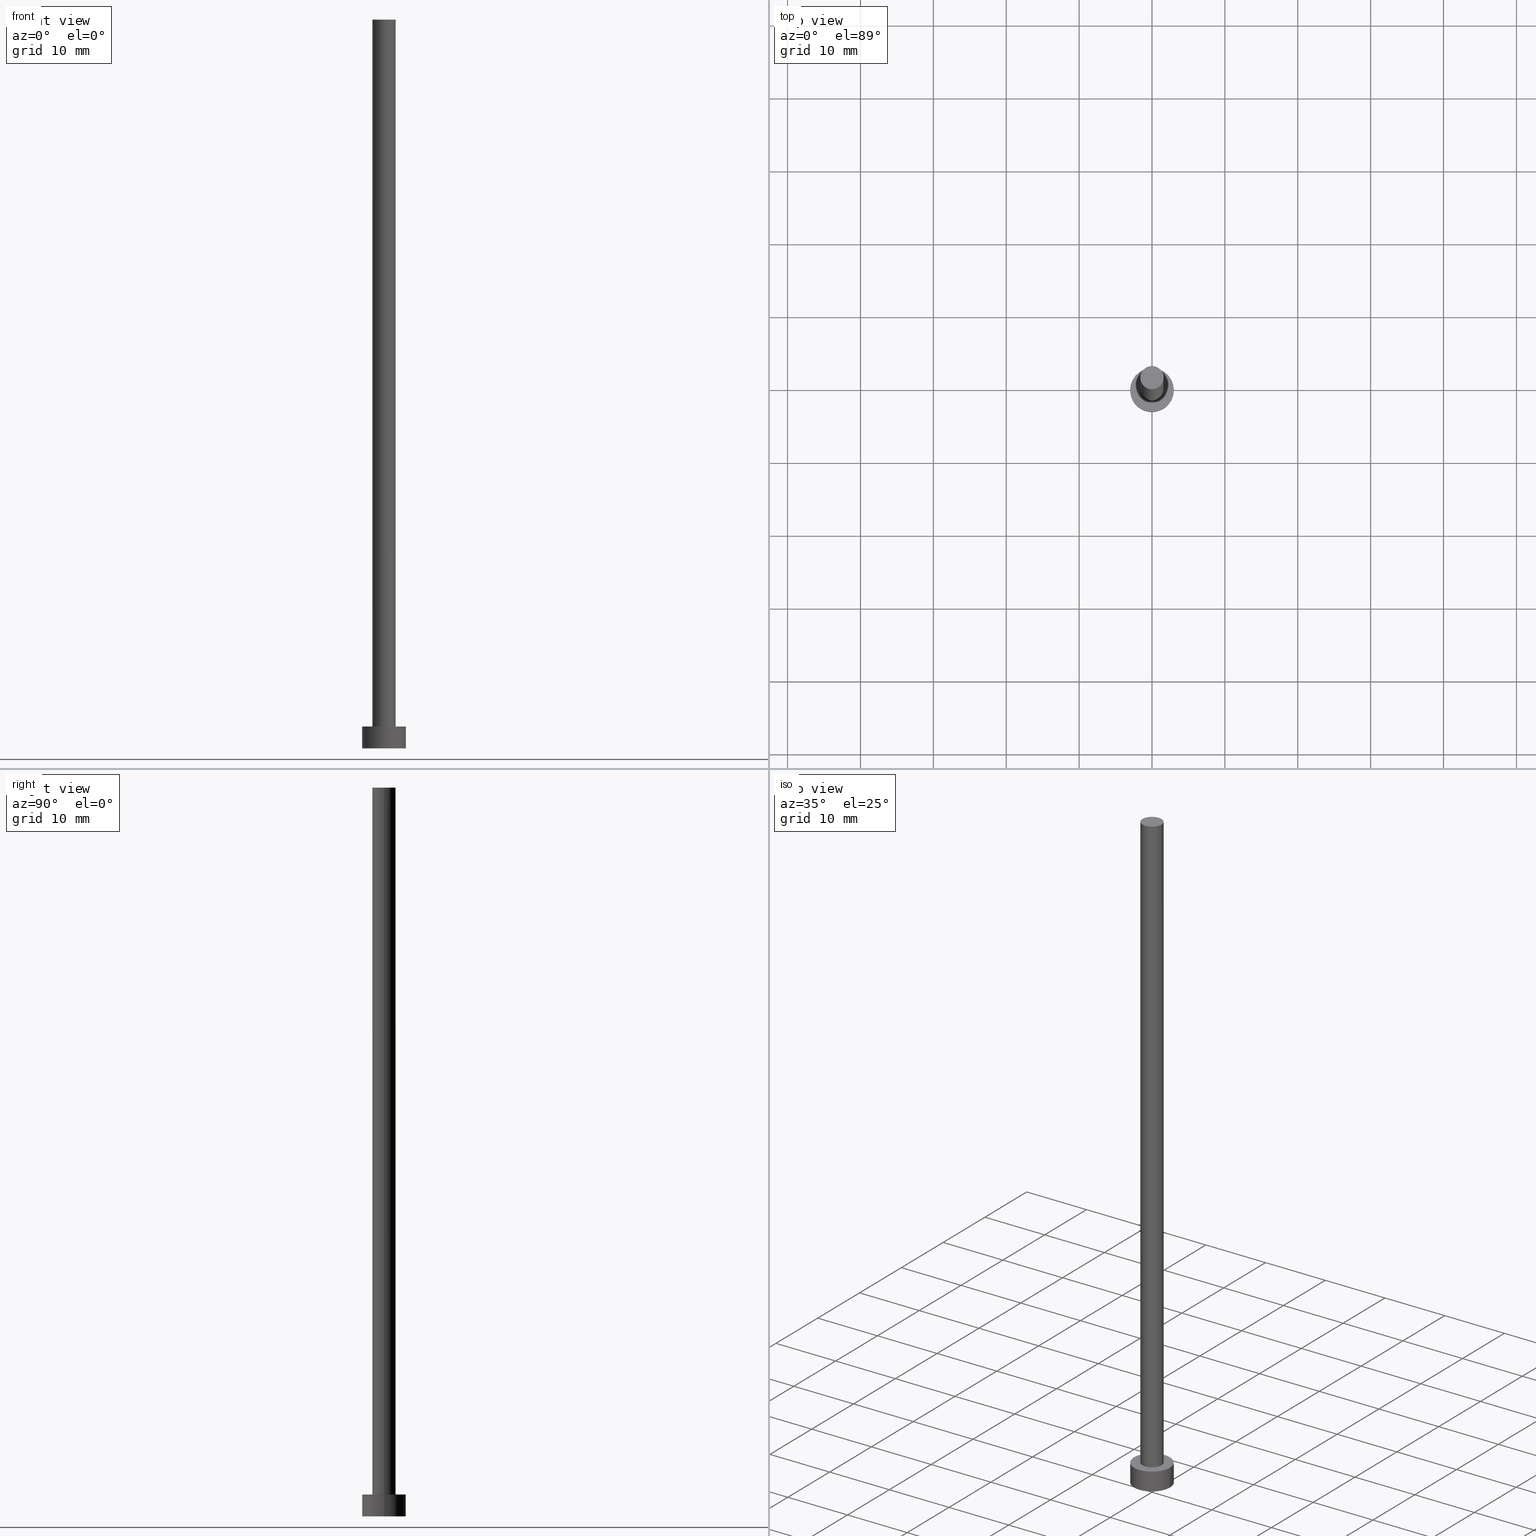
[diagram: canonical four-view strip — front | top / right | iso, engineering-drawing reading convention]
A machine part, canonical four-view strip (front | top / right | iso — engineering-drawing reading convention). The complete STEP part file that produces these views, byte-faithful:
ISO-10303-21;
HEADER;
FILE_DESCRIPTION (( 'STEP AP203' ),
    '1' );
FILE_NAME ('49ca.STEP',
    '2023-02-13T14:26:01',
    ( '' ),
    ( '' ),
    'SwSTEP 2.0',
    'SolidWorks 2019',
    '' );
FILE_SCHEMA (( 'CONFIG_CONTROL_DESIGN' ));
ENDSEC;

DATA;
#1 = CARTESIAN_POINT ( 'NONE',  ( 0.000000000000000000, 0.000000000000000000, 3.000000000000000000 ) ) ;
#2 = DATE_AND_TIME ( #176, #4 ) ;
#3 = PERSON_AND_ORGANIZATION ( #208, #141 ) ;
#4 = LOCAL_TIME ( 15, 26, 1.000000000000000000, #120 ) ;
#5 = LINE ( 'NONE', #207, #225 ) ;
#6 = CIRCLE ( 'NONE', #136, 3.000000000000000444 ) ;
#7 = VERTEX_POINT ( 'NONE', #42 ) ;
#8 = DIRECTION ( 'NONE',  ( 0.000000000000000000, 0.000000000000000000, 1.000000000000000000 ) ) ;
#9 = DIRECTION ( 'NONE',  ( -0.000000000000000000, -0.000000000000000000, -1.000000000000000000 ) ) ;
#10 = DIRECTION ( 'NONE',  ( 1.000000000000000000, 0.000000000000000000, 0.000000000000000000 ) ) ;
#11 = ADVANCED_FACE ( 'NONE', ( #180, #122 ), #248, .T. ) ;
#12 = ADVANCED_FACE ( 'NONE', ( #60 ), #204, .T. ) ;
#13 = CARTESIAN_POINT ( 'NONE',  ( 3.000000000000000444, 3.673940397442060361E-16, 3.000000000000000000 ) ) ;
#14 = CIRCLE ( 'NONE', #232, 3.000000000000000444 ) ;
#15 = CYLINDRICAL_SURFACE ( 'NONE', #111, 3.000000000000000444 ) ;
#16 = DIRECTION ( 'NONE',  ( 0.000000000000000000, 0.000000000000000000, 1.000000000000000000 ) ) ;
#17 = CC_DESIGN_DATE_AND_TIME_ASSIGNMENT ( #76, #133, ( #147 ) ) ;
#18 = DIRECTION ( 'NONE',  ( 1.000000000000000000, 0.000000000000000000, 0.000000000000000000 ) ) ;
#19 = CIRCLE ( 'NONE', #190, 3.000000000000000444 ) ;
#20 = PERSON_AND_ORGANIZATION ( #208, #141 ) ;
#21 = EDGE_CURVE ( 'NONE', #26, #212, #6, .T. ) ;
#22 = APPROVAL_STATUS ( 'not_yet_approved' ) ;
#23 = DATE_AND_TIME ( #38, #200 ) ;
#24 = VERTEX_POINT ( 'NONE', #160 ) ;
#25 = CC_DESIGN_SECURITY_CLASSIFICATION ( #115, ( #171 ) ) ;
#26 = VERTEX_POINT ( 'NONE', #32 ) ;
#27 = ORIENTED_EDGE ( 'NONE', *, *, #252, .F. ) ;
#28 = PRODUCT ( '49ca', '49ca', '', ( #168 ) ) ;
#29 = VERTEX_POINT ( 'NONE', #62 ) ;
#30 = AXIS2_PLACEMENT_3D ( 'NONE', #99, #64, #104 ) ;
#31 = CYLINDRICAL_SURFACE ( 'NONE', #30, 1.600000000000000089 ) ;
#32 = CARTESIAN_POINT ( 'NONE',  ( -3.000000000000000444, 0.000000000000000000, 3.000000000000000000 ) ) ;
#33 = DIRECTION ( 'NONE',  ( 1.000000000000000000, 0.000000000000000000, 0.000000000000000000 ) ) ;
#34 = CIRCLE ( 'NONE', #173, 1.600000000000000089 ) ;
#35 = ADVANCED_FACE ( 'NONE', ( #139 ), #223, .T. ) ;
#36 = DIRECTION ( 'NONE',  ( 0.000000000000000000, 0.000000000000000000, 1.000000000000000000 ) ) ;
#37 =( LENGTH_UNIT ( ) NAMED_UNIT ( * ) SI_UNIT ( .MILLI., .METRE. ) );
#38 = CALENDAR_DATE ( 2023, 13, 2 ) ;
#39 = PERSON_AND_ORGANIZATION ( #208, #141 ) ;
#40 = COORDINATED_UNIVERSAL_TIME_OFFSET ( 1, 0, .AHEAD. ) ;
#41 = ORIENTED_EDGE ( 'NONE', *, *, #146, .T. ) ;
#42 = CARTESIAN_POINT ( 'NONE',  ( 3.000000000000000444, 3.673940397442060361E-16, 0.000000000000000000 ) ) ;
#43 = ORIENTED_EDGE ( 'NONE', *, *, #21, .F. ) ;
#44 = DIRECTION ( 'NONE',  ( 1.000000000000000000, 0.000000000000000000, -0.000000000000000000 ) ) ;
#45 = ORIENTED_EDGE ( 'NONE', *, *, #196, .T. ) ;
#46 = CYLINDRICAL_SURFACE ( 'NONE', #138, 1.600000000000000089 ) ;
#47 = AXIS2_PLACEMENT_3D ( 'NONE', #193, #16, #237 ) ;
#48 = EDGE_LOOP ( 'NONE', ( #83, #102 ) ) ;
#49 = AXIS2_PLACEMENT_3D ( 'NONE', #148, #213, #210 ) ;
#50 = CARTESIAN_POINT ( 'NONE',  ( -3.000000000000000444, 0.000000000000000000, 0.000000000000000000 ) ) ;
#51 = APPROVAL_STATUS ( 'not_yet_approved' ) ;
#52 = EDGE_CURVE ( 'NONE', #24, #161, #5, .T. ) ;
#53 = PERSON_AND_ORGANIZATION ( #208, #141 ) ;
#54 = PERSON_AND_ORGANIZATION ( #208, #141 ) ;
#55 = UNCERTAINTY_MEASURE_WITH_UNIT (LENGTH_MEASURE( 1.000000000000000082E-05 ), #37, 'distance_accuracy_value', 'NONE');
#56 = ORIENTED_EDGE ( 'NONE', *, *, #156, .F. ) ;
#57 = APPROVAL_PERSON_ORGANIZATION ( #53, #95, #220 ) ;
#58 = CIRCLE ( 'NONE', #189, 1.600000000000000089 ) ;
#59 = APPLICATION_CONTEXT ( 'configuration controlled 3d designs of mechanical parts and assemblies' ) ;
#60 = FACE_OUTER_BOUND ( 'NONE', #177, .T. ) ;
#61 = ORIENTED_EDGE ( 'NONE', *, *, #234, .T. ) ;
#62 = CARTESIAN_POINT ( 'NONE',  ( -1.600000000000000089, 0.000000000000000000, 3.000000000000000000 ) ) ;
#63 = LOCAL_TIME ( 15, 26, 1.000000000000000000, #198 ) ;
#64 = DIRECTION ( 'NONE',  ( -0.000000000000000000, -0.000000000000000000, -1.000000000000000000 ) ) ;
#65 = ORIENTED_EDGE ( 'NONE', *, *, #109, .F. ) ;
#66 = ORIENTED_EDGE ( 'NONE', *, *, #196, .F. ) ;
#67 = CC_DESIGN_PERSON_AND_ORGANIZATION_ASSIGNMENT ( #54, #240, ( #171 ) ) ;
#68 = CARTESIAN_POINT ( 'NONE',  ( -3.000000000000000444, 0.000000000000000000, 3.000000000000000000 ) ) ;
#69 = DIRECTION ( 'NONE',  ( 1.000000000000000000, 0.000000000000000000, 0.000000000000000000 ) ) ;
#70 = DIRECTION ( 'NONE',  ( 1.000000000000000000, 0.000000000000000000, 0.000000000000000000 ) ) ;
#71 = ORIENTED_EDGE ( 'NONE', *, *, #222, .F. ) ;
#72 = DIRECTION ( 'NONE',  ( -0.000000000000000000, -0.000000000000000000, -1.000000000000000000 ) ) ;
#73 = FACE_OUTER_BOUND ( 'NONE', #48, .T. ) ;
#74 = APPLICATION_PROTOCOL_DEFINITION ( 'international standard', 'config_control_design', 1994, #59 ) ;
#75 = ADVANCED_FACE ( 'NONE', ( #184 ), #31, .T. ) ;
#76 = DATE_AND_TIME ( #96, #85 ) ;
#77 = PERSON_AND_ORGANIZATION_ROLE ( 'classification_officer' ) ;
#78 = VECTOR ( 'NONE', #145, 1000.000000000000000 ) ;
#79 = MANIFOLD_SOLID_BREP ( 'P�idat vysunut�m3', #243 ) ;
#80 = APPROVAL_PERSON_ORGANIZATION ( #186, #100, #97 ) ;
#81 = VECTOR ( 'NONE', #128, 1000.000000000000000 ) ;
#82 = CARTESIAN_POINT ( 'NONE',  ( 0.000000000000000000, 0.000000000000000000, 3.000000000000000000 ) ) ;
#83 = ORIENTED_EDGE ( 'NONE', *, *, #194, .F. ) ;
#84 = CARTESIAN_POINT ( 'NONE',  ( 3.000000000000000444, 3.673940397442060361E-16, 3.000000000000000000 ) ) ;
#85 = LOCAL_TIME ( 15, 26, 1.000000000000000000, #242 ) ;
#86 = CIRCLE ( 'NONE', #47, 1.600000000000000089 ) ;
#87 = CARTESIAN_POINT ( 'NONE',  ( 0.000000000000000000, 0.000000000000000000, 0.000000000000000000 ) ) ;
#88 = CARTESIAN_POINT ( 'NONE',  ( -1.600000000000000089, 0.000000000000000000, 100.0000000000000000 ) ) ;
#89 = DIRECTION ( 'NONE',  ( 0.000000000000000000, 0.000000000000000000, 1.000000000000000000 ) ) ;
#90 = EDGE_CURVE ( 'NONE', #212, #7, #163, .T. ) ;
#91 = PRODUCT_RELATED_PRODUCT_CATEGORY ( 'detail', '', ( #28 ) ) ;
#92 = DIRECTION ( 'NONE',  ( -1.000000000000000000, 0.000000000000000000, 0.000000000000000000 ) ) ;
#93 = CARTESIAN_POINT ( 'NONE',  ( 0.000000000000000000, 0.000000000000000000, 3.000000000000000000 ) ) ;
#94 = PERSON_AND_ORGANIZATION ( #208, #141 ) ;
#95 = APPROVAL ( #22, 'NEUR�EN�' ) ;
#96 = CALENDAR_DATE ( 2023, 13, 2 ) ;
#97 = APPROVAL_ROLE ( '' ) ;
#98 = EDGE_CURVE ( 'NONE', #7, #229, #14, .T. ) ;
#99 = CARTESIAN_POINT ( 'NONE',  ( 0.000000000000000000, 0.000000000000000000, 100.0000000000000000 ) ) ;
#100 = APPROVAL ( #239, 'NEUR�EN�' ) ;
#101 = AXIS2_PLACEMENT_3D ( 'NONE', #82, #231, #44 ) ;
#102 = ORIENTED_EDGE ( 'NONE', *, *, #98, .F. ) ;
#103 = ORIENTED_EDGE ( 'NONE', *, *, #156, .T. ) ;
#104 = DIRECTION ( 'NONE',  ( -1.000000000000000000, 0.000000000000000000, 0.000000000000000000 ) ) ;
#105 = DIRECTION ( 'NONE',  ( 1.000000000000000000, 0.000000000000000000, -0.000000000000000000 ) ) ;
#106 = CC_DESIGN_PERSON_AND_ORGANIZATION_ASSIGNMENT ( #3, #195, ( #147 ) ) ;
#107 = CARTESIAN_POINT ( 'NONE',  ( 0.000000000000000000, 0.000000000000000000, 3.000000000000000000 ) ) ;
#108 =( NAMED_UNIT ( * ) PLANE_ANGLE_UNIT ( ) SI_UNIT ( $, .RADIAN. ) );
#109 = EDGE_CURVE ( 'NONE', #161, #29, #158, .T. ) ;
#110 = VERTEX_POINT ( 'NONE', #88 ) ;
#111 = AXIS2_PLACEMENT_3D ( 'NONE', #255, #113, #92 ) ;
#112 = CARTESIAN_POINT ( 'NONE',  ( 0.000000000000000000, 0.000000000000000000, 0.000000000000000000 ) ) ;
#113 = DIRECTION ( 'NONE',  ( -0.000000000000000000, -0.000000000000000000, -1.000000000000000000 ) ) ;
#114 =( NAMED_UNIT ( * ) SI_UNIT ( $, .STERADIAN. ) SOLID_ANGLE_UNIT ( ) );
#115 = SECURITY_CLASSIFICATION ( '', '', #116 ) ;
#116 = SECURITY_CLASSIFICATION_LEVEL ( 'unclassified' ) ;
#117 = EDGE_LOOP ( 'NONE', ( #126, #61 ) ) ;
#118 =( GEOMETRIC_REPRESENTATION_CONTEXT ( 3 ) GLOBAL_UNCERTAINTY_ASSIGNED_CONTEXT ( ( #55 ) ) GLOBAL_UNIT_ASSIGNED_CONTEXT ( ( #37, #108, #114 ) ) REPRESENTATION_CONTEXT ( 'NONE', 'WORKASPACE' ) );
#119 = CALENDAR_DATE ( 2023, 13, 2 ) ;
#120 = COORDINATED_UNIVERSAL_TIME_OFFSET ( 1, 0, .AHEAD. ) ;
#121 = CALENDAR_DATE ( 2023, 13, 2 ) ;
#122 = FACE_OUTER_BOUND ( 'NONE', #117, .T. ) ;
#123 = DIRECTION ( 'NONE',  ( -0.000000000000000000, -0.000000000000000000, -1.000000000000000000 ) ) ;
#124 = AXIS2_PLACEMENT_3D ( 'NONE', #201, #127, #183 ) ;
#125 = DIRECTION ( 'NONE',  ( 1.000000000000000000, 0.000000000000000000, 0.000000000000000000 ) ) ;
#126 = ORIENTED_EDGE ( 'NONE', *, *, #21, .T. ) ;
#127 = DIRECTION ( 'NONE',  ( -0.000000000000000000, -0.000000000000000000, -1.000000000000000000 ) ) ;
#128 = DIRECTION ( 'NONE',  ( -0.000000000000000000, -0.000000000000000000, -1.000000000000000000 ) ) ;
#129 = LINE ( 'NONE', #233, #81 ) ;
#130 = EDGE_LOOP ( 'NONE', ( #45, #135 ) ) ;
#131 = PERSON_AND_ORGANIZATION_ROLE ( 'design_owner' ) ;
#132 = DIRECTION ( 'NONE',  ( 0.000000000000000000, 0.000000000000000000, 1.000000000000000000 ) ) ;
#133 = DATE_TIME_ROLE ( 'creation_date' ) ;
#134 = DATE_AND_TIME ( #121, #63 ) ;
#135 = ORIENTED_EDGE ( 'NONE', *, *, #252, .T. ) ;
#136 = AXIS2_PLACEMENT_3D ( 'NONE', #205, #246, #125 ) ;
#137 = APPROVAL_DATE_TIME ( #134, #100 ) ;
#138 = AXIS2_PLACEMENT_3D ( 'NONE', #215, #72, #251 ) ;
#139 = FACE_OUTER_BOUND ( 'NONE', #130, .T. ) ;
#140 = ORIENTED_EDGE ( 'NONE', *, *, #234, .F. ) ;
#141 = ORGANIZATION ( 'NEUR�EN�', 'NEUR�EN�', '' ) ;
#142 = ORIENTED_EDGE ( 'NONE', *, *, #222, .T. ) ;
#143 = ORIENTED_EDGE ( 'NONE', *, *, #52, .T. ) ;
#144 = ADVANCED_BREP_SHAPE_REPRESENTATION ( '49ca', ( #79, #188 ), #118 ) ;
#145 = DIRECTION ( 'NONE',  ( -0.000000000000000000, -0.000000000000000000, -1.000000000000000000 ) ) ;
#146 = EDGE_CURVE ( 'NONE', #26, #229, #166, .T. ) ;
#147 = PRODUCT_DEFINITION ( 'NEZN�M�', '', #171, #236 ) ;
#148 = CARTESIAN_POINT ( 'NONE',  ( 0.000000000000000000, 0.000000000000000000, 0.000000000000000000 ) ) ;
#149 = DIRECTION ( 'NONE',  ( 0.000000000000000000, 0.000000000000000000, 1.000000000000000000 ) ) ;
#150 = DIRECTION ( 'NONE',  ( 1.000000000000000000, 0.000000000000000000, 0.000000000000000000 ) ) ;
#151 = CARTESIAN_POINT ( 'NONE',  ( 1.600000000000000089, 1.959434878635764737E-16, 3.000000000000000000 ) ) ;
#152 = PLANE ( 'NONE',  #49 ) ;
#153 = CC_DESIGN_DATE_AND_TIME_ASSIGNMENT ( #2, #157, ( #115 ) ) ;
#154 = COORDINATED_UNIVERSAL_TIME_OFFSET ( 1, 0, .AHEAD. ) ;
#155 = ADVANCED_FACE ( 'NONE', ( #187 ), #15, .T. ) ;
#156 = EDGE_CURVE ( 'NONE', #29, #161, #58, .T. ) ;
#157 = DATE_TIME_ROLE ( 'classification_date' ) ;
#158 = CIRCLE ( 'NONE', #192, 1.600000000000000089 ) ;
#159 = ORIENTED_EDGE ( 'NONE', *, *, #52, .F. ) ;
#160 = CARTESIAN_POINT ( 'NONE',  ( 1.600000000000000089, 1.959434878635764737E-16, 100.0000000000000000 ) ) ;
#161 = VERTEX_POINT ( 'NONE', #151 ) ;
#162 = EDGE_LOOP ( 'NONE', ( #159, #66, #142, #103 ) ) ;
#163 = LINE ( 'NONE', #84, #203 ) ;
#164 = CC_DESIGN_APPROVAL ( #227, ( #171 ) ) ;
#165 = DIRECTION ( 'NONE',  ( 0.000000000000000000, 0.000000000000000000, 1.000000000000000000 ) ) ;
#166 = LINE ( 'NONE', #68, #78 ) ;
#167 = LOCAL_TIME ( 15, 26, 1.000000000000000000, #40 ) ;
#168 = MECHANICAL_CONTEXT ( 'NONE', #179, 'mechanical' ) ;
#169 = CARTESIAN_POINT ( 'NONE',  ( 0.000000000000000000, 0.000000000000000000, 100.0000000000000000 ) ) ;
#170 = DIRECTION ( 'NONE',  ( 0.000000000000000000, 0.000000000000000000, 1.000000000000000000 ) ) ;
#171 = PRODUCT_DEFINITION_FORMATION_WITH_SPECIFIED_SOURCE ( 'LIBOVOLN�', '', #28, .NOT_KNOWN. ) ;
#172 = APPLICATION_PROTOCOL_DEFINITION ( 'international standard', 'config_control_design', 1994, #179 ) ;
#173 = AXIS2_PLACEMENT_3D ( 'NONE', #169, #170, #69 ) ;
#174 = CC_DESIGN_PERSON_AND_ORGANIZATION_ASSIGNMENT ( #197, #218, ( #171 ) ) ;
#175 = ADVANCED_FACE ( 'NONE', ( #73 ), #152, .F. ) ;
#176 = CALENDAR_DATE ( 2023, 13, 2 ) ;
#177 = EDGE_LOOP ( 'NONE', ( #224, #43, #41, #226 ) ) ;
#178 = APPROVAL_DATE_TIME ( #23, #227 ) ;
#179 = APPLICATION_CONTEXT ( 'configuration controlled 3d designs of mechanical parts and assemblies' ) ;
#180 = FACE_BOUND ( 'NONE', #182, .T. ) ;
#181 = AXIS2_PLACEMENT_3D ( 'NONE', #199, #8, #105 ) ;
#182 = EDGE_LOOP ( 'NONE', ( #56, #65 ) ) ;
#183 = DIRECTION ( 'NONE',  ( -1.000000000000000000, 0.000000000000000000, 0.000000000000000000 ) ) ;
#184 = FACE_OUTER_BOUND ( 'NONE', #162, .T. ) ;
#185 = DIRECTION ( 'NONE',  ( 0.000000000000000000, 0.000000000000000000, 1.000000000000000000 ) ) ;
#186 = PERSON_AND_ORGANIZATION ( #208, #141 ) ;
#187 = FACE_OUTER_BOUND ( 'NONE', #228, .T. ) ;
#188 = AXIS2_PLACEMENT_3D ( 'NONE', #191, #89, #211 ) ;
#189 = AXIS2_PLACEMENT_3D ( 'NONE', #1, #149, #150 ) ;
#190 = AXIS2_PLACEMENT_3D ( 'NONE', #112, #36, #70 ) ;
#191 = CARTESIAN_POINT ( 'NONE',  ( 0.000000000000000000, 0.000000000000000000, 0.000000000000000000 ) ) ;
#192 = AXIS2_PLACEMENT_3D ( 'NONE', #107, #185, #10 ) ;
#193 = CARTESIAN_POINT ( 'NONE',  ( 0.000000000000000000, 0.000000000000000000, 100.0000000000000000 ) ) ;
#194 = EDGE_CURVE ( 'NONE', #229, #7, #19, .T. ) ;
#195 = PERSON_AND_ORGANIZATION_ROLE ( 'creator' ) ;
#196 = EDGE_CURVE ( 'NONE', #110, #24, #86, .T. ) ;
#197 = PERSON_AND_ORGANIZATION ( #208, #141 ) ;
#198 = COORDINATED_UNIVERSAL_TIME_OFFSET ( 1, 0, .AHEAD. ) ;
#199 = CARTESIAN_POINT ( 'NONE',  ( 0.000000000000000000, 0.000000000000000000, 100.0000000000000000 ) ) ;
#200 = LOCAL_TIME ( 15, 26, 1.000000000000000000, #154 ) ;
#201 = CARTESIAN_POINT ( 'NONE',  ( 0.000000000000000000, 0.000000000000000000, 3.000000000000000000 ) ) ;
#202 = CIRCLE ( 'NONE', #241, 3.000000000000000444 ) ;
#203 = VECTOR ( 'NONE', #9, 1000.000000000000000 ) ;
#204 = CYLINDRICAL_SURFACE ( 'NONE', #124, 3.000000000000000444 ) ;
#205 = CARTESIAN_POINT ( 'NONE',  ( 0.000000000000000000, 0.000000000000000000, 3.000000000000000000 ) ) ;
#206 = CC_DESIGN_APPROVAL ( #95, ( #115 ) ) ;
#207 = CARTESIAN_POINT ( 'NONE',  ( 1.600000000000000089, 1.959434878635764737E-16, 100.0000000000000000 ) ) ;
#208 = PERSON ( 'NEUR�EN�', 'NEUR�EN�', 'NEUR�EN�', ('NEUR�EN�'), ('NEUR�EN�'), ('NEUR�EN�') ) ;
#209 = FACE_OUTER_BOUND ( 'NONE', #245, .T. ) ;
#210 = DIRECTION ( 'NONE',  ( 1.000000000000000000, 0.000000000000000000, -0.000000000000000000 ) ) ;
#211 = DIRECTION ( 'NONE',  ( 1.000000000000000000, 0.000000000000000000, 0.000000000000000000 ) ) ;
#212 = VERTEX_POINT ( 'NONE', #13 ) ;
#213 = DIRECTION ( 'NONE',  ( 0.000000000000000000, 0.000000000000000000, 1.000000000000000000 ) ) ;
#214 = SHAPE_DEFINITION_REPRESENTATION ( #221, #144 ) ;
#215 = CARTESIAN_POINT ( 'NONE',  ( 0.000000000000000000, 0.000000000000000000, 100.0000000000000000 ) ) ;
#216 = APPROVAL_DATE_TIME ( #238, #95 ) ;
#217 = APPROVAL_ROLE ( '' ) ;
#218 = PERSON_AND_ORGANIZATION_ROLE ( 'creator' ) ;
#219 = CC_DESIGN_PERSON_AND_ORGANIZATION_ASSIGNMENT ( #39, #77, ( #115 ) ) ;
#220 = APPROVAL_ROLE ( '' ) ;
#221 = PRODUCT_DEFINITION_SHAPE ( 'NONE', 'NONE',  #147 ) ;
#222 = EDGE_CURVE ( 'NONE', #110, #29, #129, .T. ) ;
#223 = PLANE ( 'NONE',  #181 ) ;
#224 = ORIENTED_EDGE ( 'NONE', *, *, #90, .F. ) ;
#225 = VECTOR ( 'NONE', #123, 1000.000000000000000 ) ;
#226 = ORIENTED_EDGE ( 'NONE', *, *, #194, .T. ) ;
#227 = APPROVAL ( #51, 'NEUR�EN�' ) ;
#228 = EDGE_LOOP ( 'NONE', ( #140, #253, #249, #254 ) ) ;
#229 = VERTEX_POINT ( 'NONE', #50 ) ;
#230 = APPROVAL_PERSON_ORGANIZATION ( #20, #227, #217 ) ;
#231 = DIRECTION ( 'NONE',  ( 0.000000000000000000, 0.000000000000000000, 1.000000000000000000 ) ) ;
#232 = AXIS2_PLACEMENT_3D ( 'NONE', #87, #165, #33 ) ;
#233 = CARTESIAN_POINT ( 'NONE',  ( -1.600000000000000089, 0.000000000000000000, 100.0000000000000000 ) ) ;
#234 = EDGE_CURVE ( 'NONE', #212, #26, #202, .T. ) ;
#235 = ADVANCED_FACE ( 'NONE', ( #209 ), #46, .T. ) ;
#236 = DESIGN_CONTEXT ( 'detailed design', #59, 'design' ) ;
#237 = DIRECTION ( 'NONE',  ( 1.000000000000000000, 0.000000000000000000, 0.000000000000000000 ) ) ;
#238 = DATE_AND_TIME ( #119, #167 ) ;
#239 = APPROVAL_STATUS ( 'not_yet_approved' ) ;
#240 = PERSON_AND_ORGANIZATION_ROLE ( 'design_supplier' ) ;
#241 = AXIS2_PLACEMENT_3D ( 'NONE', #93, #132, #18 ) ;
#242 = COORDINATED_UNIVERSAL_TIME_OFFSET ( 1, 0, .AHEAD. ) ;
#243 = CLOSED_SHELL ( 'NONE', ( #235, #155, #12, #11, #175, #75, #35 ) ) ;
#244 = CC_DESIGN_PERSON_AND_ORGANIZATION_ASSIGNMENT ( #94, #131, ( #28 ) ) ;
#245 = EDGE_LOOP ( 'NONE', ( #27, #143, #250, #71 ) ) ;
#246 = DIRECTION ( 'NONE',  ( 0.000000000000000000, 0.000000000000000000, 1.000000000000000000 ) ) ;
#247 = CC_DESIGN_APPROVAL ( #100, ( #147 ) ) ;
#248 = PLANE ( 'NONE',  #101 ) ;
#249 = ORIENTED_EDGE ( 'NONE', *, *, #98, .T. ) ;
#250 = ORIENTED_EDGE ( 'NONE', *, *, #109, .T. ) ;
#251 = DIRECTION ( 'NONE',  ( -1.000000000000000000, 0.000000000000000000, 0.000000000000000000 ) ) ;
#252 = EDGE_CURVE ( 'NONE', #24, #110, #34, .T. ) ;
#253 = ORIENTED_EDGE ( 'NONE', *, *, #90, .T. ) ;
#254 = ORIENTED_EDGE ( 'NONE', *, *, #146, .F. ) ;
#255 = CARTESIAN_POINT ( 'NONE',  ( 0.000000000000000000, 0.000000000000000000, 3.000000000000000000 ) ) ;
ENDSEC;
END-ISO-10303-21;
